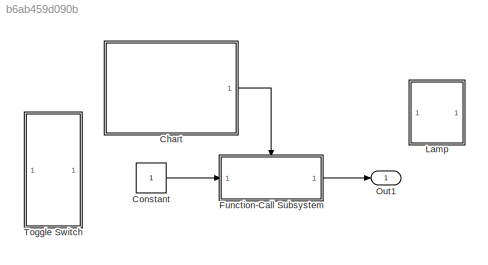
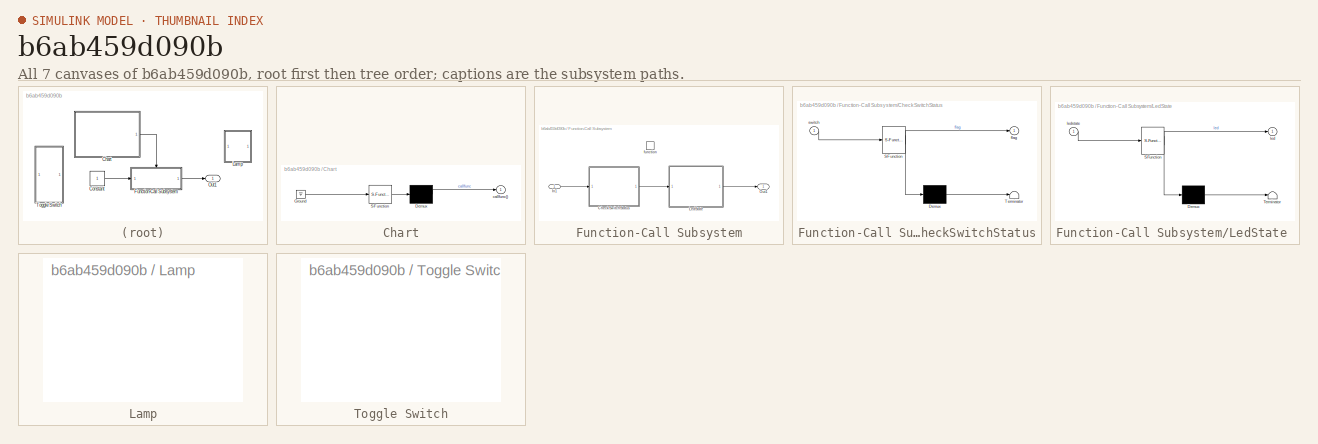
[diagram: thumbnail index - all 7 canvases of the model, root first then tree order]
MODEL slx_b6ab459d090b
KIND model
CONFIG AbsTol = auto
CONFIG FixedStep = auto
CONFIG MaxStep = auto
CONFIG MinStep = auto
CONFIG RelTol = 1e-3
CONFIG SampleTimeConstraint = Unconstrained
CONFIG Solver = VariableStepAuto
CONFIG SolverMode = Auto
CONFIG SolverName = VariableStepAuto
CONFIG StartTime = 0.0
CONFIG StopTime = 10.0
BLOCK [SubSystem] Chart
  ErrorFcn = Stateflow.Translate.translate
  PermitHierarchicalResolution = ExplicitOnly
  Ports = [0, 1]
  RequestExecContextInheritance = off
  SFBlockType = Chart
  TreatAsAtomicUnit = on
  Variant = off
BLOCK [Demux] Chart/ Demux 
  Outputs = 1
  Ports = [1, 1]
BLOCK [Ground] Chart/ Ground 
BLOCK [S-Function] Chart/ SFunction 
  EnableBusSupport = on
  FunctionName = sf_sfun
  PortCounts = [1 1]
  Ports = [1, 1]
  SFunctionDeploymentMode = off
  Tag = Stateflow S-Function Assign 3
BLOCK [Outport] Chart/callfunc()
  IconDisplay = Port number
BLOCK [Constant] Constant
BLOCK [SubSystem] Function-Call Subsystem
  Ports = [1, 1, 0, 1]
  RequestExecContextInheritance = off
  TreatAsAtomicUnit = on
  Variant = off
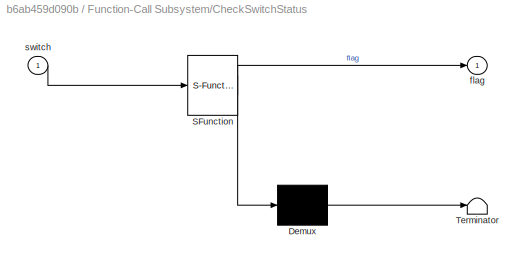
BLOCK [SubSystem] Function-Call Subsystem/CheckSwitchStatus
  ErrorFcn = Stateflow.Translate.translate
  PermitHierarchicalResolution = ExplicitOnly
  Ports = [1, 1]
  RequestExecContextInheritance = off
  SFBlockType = Chart
  TreatAsAtomicUnit = on
  Variant = off
BLOCK [Demux] Function-Call Subsystem/CheckSwitchStatus/ Demux 
  Outputs = 1
  Ports = [1, 1]
BLOCK [S-Function] Function-Call Subsystem/CheckSwitchStatus/ SFunction 
  EnableBusSupport = on
  FunctionName = sf_sfun
  PortCounts = [1 2]
  Ports = [1, 2]
  SFunctionDeploymentMode = off
  Tag = Stateflow S-Function Assign 1
BLOCK [Terminator] Function-Call Subsystem/CheckSwitchStatus/ Terminator 
BLOCK [Outport] Function-Call Subsystem/CheckSwitchStatus/flag
  IconDisplay = Port number
BLOCK [Inport] Function-Call Subsystem/CheckSwitchStatus/switch
  IconDisplay = Port number
BLOCK [Inport] Function-Call Subsystem/In1
  IconDisplay = Port number
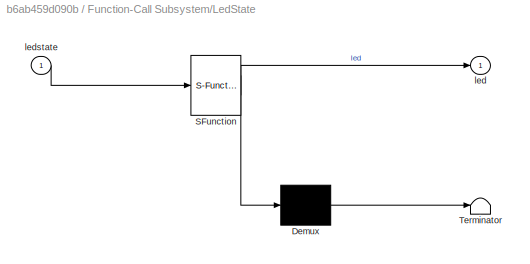
BLOCK [SubSystem] Function-Call Subsystem/LedState 
  ErrorFcn = Stateflow.Translate.translate
  PermitHierarchicalResolution = ExplicitOnly
  Ports = [1, 1]
  RequestExecContextInheritance = off
  SFBlockType = Chart
  TreatAsAtomicUnit = on
  Variant = off
BLOCK [Demux] Function-Call Subsystem/LedState / Demux 
  Outputs = 1
  Ports = [1, 1]
BLOCK [S-Function] Function-Call Subsystem/LedState / SFunction 
  EnableBusSupport = on
  FunctionName = sf_sfun
  PortCounts = [1 2]
  Ports = [1, 2]
  SFunctionDeploymentMode = off
  Tag = Stateflow S-Function Assign 2
BLOCK [Terminator] Function-Call Subsystem/LedState / Terminator 
BLOCK [Outport] Function-Call Subsystem/LedState /led
  IconDisplay = Port number
BLOCK [Inport] Function-Call Subsystem/LedState /ledstate
  IconDisplay = Port number
BLOCK [Outport] Function-Call Subsystem/Out1
  IconDisplay = Port number
BLOCK [TriggerPort] Function-Call Subsystem/function
  Ports = []
  StatesWhenEnabling = held
  TriggerType = function-call
  VariantControl = Variant
BLOCK [SubSystem] Lamp
  DialogController = hmiCreateDDGDialog
  IsWebBlock = on
  MaskHideContents = on
  Ports = []
  RequestExecContextInheritance = off
  Variant = off
BLOCK [Outport] Out1
  IconDisplay = Port number
BLOCK [SubSystem] Toggle Switch
  DialogController = hmiCreateDDGDialog
  IsWebBlock = on
  MaskHideContents = on
  Ports = []
  RequestExecContextInheritance = off
  Variant = off
LINE Chart:1 -> Function-Call Subsystem:trigger
LINE Constant:1 -> Function-Call Subsystem:1
LINE Function-Call Subsystem/CheckSwitchStatus:1 -> Function-Call Subsystem/LedState :1
LINE Function-Call Subsystem/In1:1 -> Function-Call Subsystem/CheckSwitchStatus:1
LINE Function-Call Subsystem/LedState :1 -> Function-Call Subsystem/Out1:1
LINE Function-Call Subsystem:1 -> Out1:1
CHART Function-Call
Subsystem/CheckSwitchStatus states=0 transitions=6
CHART Function-Call
Subsystem/LedState
 states=0 transitions=6
CHART Chart states=1 transitions=2
  STATE_LABEL 'callFunction\nen:\ndu:\nex:'
